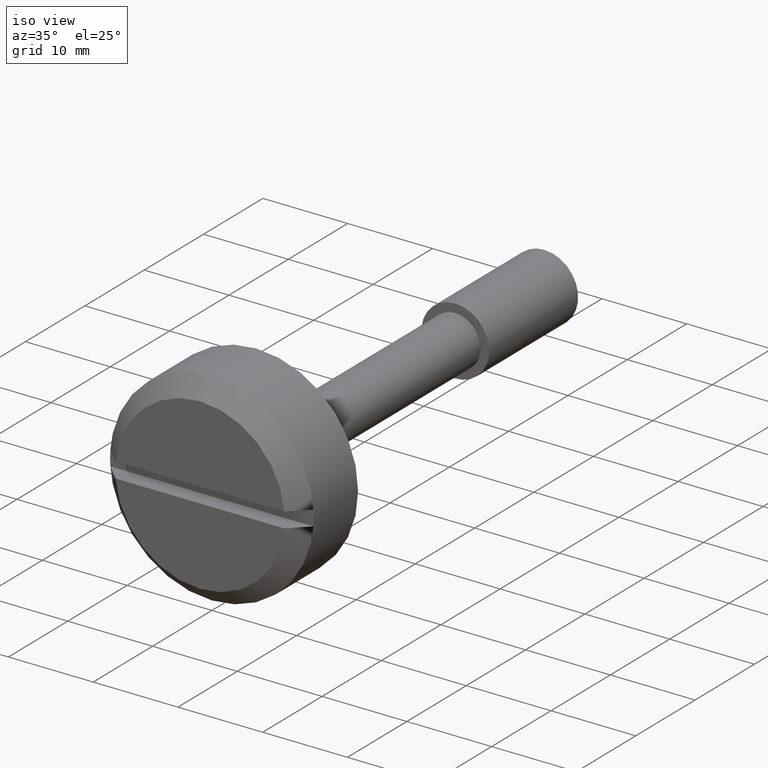
[diagram: clean part render]
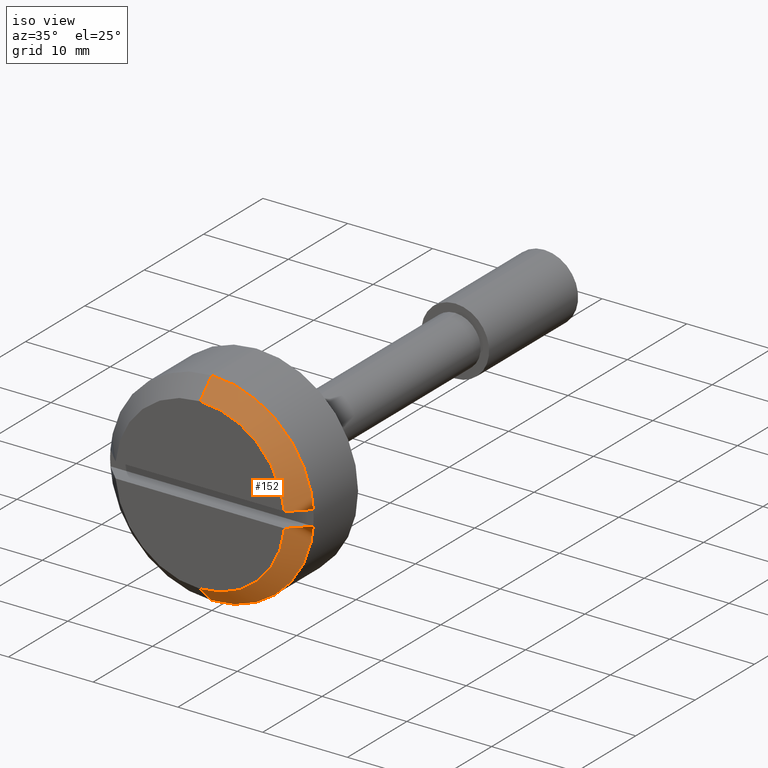
[diagram: same view with one face highlighted and labeled with its STEP entity id]
A machine part, iso view. The second image highlights one B-rep face of the part: STEP entity #152.
In plain terms, the highlighted face is a freeform B-spline surface patch.
Its self-contained STEP definition (entity closure, byte-faithful):
#152=ADVANCED_FACE('',(#560),#559,.T.);
#559=( BOUNDED_SURFACE() B_SPLINE_SURFACE( 2,1,((#808,#809),(#810,#811),(#812,#813),(#814,#815),(#816,#817)), .UNSPECIFIED.,.F.,.F.,.F.) B_SPLINE_SURFACE_WITH_KNOTS((3,2,3),(2,2),(0.00000000000E+00,5.00000000000E-01,1.00000000000E+00),(0.00000000000E+00,1.00000000000E+00), .UNSPECIFIED. ) GEOMETRIC_REPRESENTATION_ITEM() RATIONAL_B_SPLINE_SURFACE(((1.00000000000E+00,1.00000000000E+00),(7.07106781187E-01,7.07106781187E-01),(1.00000000000E+00,1.00000000000E+00),(7.07106781187E-01,7.07106781187E-01),(1.00000000000E+00,1.00000000000E+00))) REPRESENTATION_ITEM('') SURFACE() );
#560=FACE_OUTER_BOUND('',#818,.T.);
#808=CARTESIAN_POINT('',(-1.19999628376E+01,-2.44927820751E-15,9.99993716236E+00));
#809=CARTESIAN_POINT('',(-9.99990000000E+00,-2.93915231795E-15,1.20000000000E+01));
#810=CARTESIAN_POINT('',(-1.19999628376E+01,-9.99993716236E+00,9.99993716236E+00));
#811=CARTESIAN_POINT('',(-9.99990000000E+00,-1.20000000000E+01,1.20000000000E+01));
#812=CARTESIAN_POINT('',(-1.19999628376E+01,-9.99993716236E+00,-1.83695865563E-15));
#813=CARTESIAN_POINT('',(-9.99990000000E+00,-1.20000000000E+01,-2.20436423847E-15));
#814=CARTESIAN_POINT('',(-1.19999628376E+01,-9.99993716236E+00,-9.99993716236E+00));
#815=CARTESIAN_POINT('',(-9.99990000000E+00,-1.20000000000E+01,-1.20000000000E+01));
#816=CARTESIAN_POINT('',(-1.19999628376E+01,1.22463910376E-15,-9.99993716236E+00));
#817=CARTESIAN_POINT('',(-9.99990000000E+00,1.46957615898E-15,-1.20000000000E+01));
#818=EDGE_LOOP('',(#1014,#1015,#1016,#1017,#1018,#1019,#1020,#1021));
#1014=ORIENTED_EDGE('',*,*,#1115,.T.);
#1015=ORIENTED_EDGE('',*,*,#1128,.F.);
#1016=ORIENTED_EDGE('',*,*,#1092,.F.);
#1017=ORIENTED_EDGE('',*,*,#1100,.F.);
#1018=ORIENTED_EDGE('',*,*,#1104,.F.);
#1019=ORIENTED_EDGE('',*,*,#1107,.F.);
#1020=ORIENTED_EDGE('',*,*,#1109,.F.);
#1021=ORIENTED_EDGE('',*,*,#1129,.T.);
#1092=EDGE_CURVE('',#1546,#1547,#1548,.T.);
#1100=EDGE_CURVE('',#1596,#1546,#1603,.T.);
#1104=EDGE_CURVE('',#1622,#1596,#1629,.T.);
#1107=EDGE_CURVE('',#1642,#1622,#1649,.T.);
#1109=EDGE_CURVE('',#1655,#1642,#1662,.T.);
#1115=EDGE_CURVE('',#1669,#1668,#1702,.T.);
#1128=EDGE_CURVE('',#1547,#1668,#1783,.T.);
#1129=EDGE_CURVE('',#1655,#1669,#1789,.T.);
#1546=VERTEX_POINT('',#2051);
#1547=VERTEX_POINT('',#2052);
#1548=CIRCLE('',#2056,1.00000000000E+01);
#1596=VERTEX_POINT('',#2086);
#1603=(BOUNDED_CURVE() B_SPLINE_CURVE(3,(#2090,#2091,#2092,#2093),.UNSPECIFIED.,.F.,.F.) B_SPLINE_CURVE_WITH_KNOTS((4,4),(2.03654719955E-02,2.31985591046E-02),.UNSPECIFIED.) CURVE() GEOMETRIC_REPRESENTATION_ITEM() RATIONAL_B_SPLINE_CURVE((1.00000000000E+00,1.00000000000E+00,1.00000000000E+00,1.00000000000E+00)) REPRESENTATION_ITEM('') );
#1622=VERTEX_POINT('',#2103);
#1629=CIRCLE('',#2110,1.19999000000E+01);
#1642=VERTEX_POINT('',#2116);
#1649=(BOUNDED_CURVE() B_SPLINE_CURVE(3,(#2120,#2121,#2122,#2123),.UNSPECIFIED.,.F.,.F.) B_SPLINE_CURVE_WITH_KNOTS((4,4),(5.03592465112E-02,5.31959732792E-02),.UNSPECIFIED.) CURVE() GEOMETRIC_REPRESENTATION_ITEM() RATIONAL_B_SPLINE_CURVE((1.00000000000E+00,1.00000000000E+00,1.00000000000E+00,1.00000000000E+00)) REPRESENTATION_ITEM('') );
#1655=VERTEX_POINT('',#2124);
#1662=CIRCLE('',#2132,1.00000000000E+01);
#1668=VERTEX_POINT('',#2133);
#1669=VERTEX_POINT('',#2134);
#1702=CIRCLE('',#2156,1.20000000000E+01);
#1783=(BOUNDED_CURVE() B_SPLINE_CURVE(1,(#2188,#2189),.UNSPECIFIED.,.F.,.F.) B_SPLINE_CURVE_WITH_KNOTS((2,2),(3.14215829039E-05,1.00000000000E+00),.UNSPECIFIED.) CURVE() GEOMETRIC_REPRESENTATION_ITEM() RATIONAL_B_SPLINE_CURVE((1.00000000000E+00,1.00000000000E+00)) REPRESENTATION_ITEM('') );
#1789=(BOUNDED_CURVE() B_SPLINE_CURVE(1,(#2190,#2191),.UNSPECIFIED.,.F.,.F.) B_SPLINE_CURVE_WITH_KNOTS((2,2),(0.00000000000E+00,1.00000000000E+00),.UNSPECIFIED.) CURVE() GEOMETRIC_REPRESENTATION_ITEM() RATIONAL_B_SPLINE_CURVE((7.50000000000E-01,7.50000000000E-01)) REPRESENTATION_ITEM('') );
#2051=CARTESIAN_POINT('',(-1.19999000000E+01,-9.95941765366E+00,9.00000000000E-01));
#2052=CARTESIAN_POINT('',(-1.19999000000E+01,-1.60540127897E-06,1.00000000000E+01));
#2053=CARTESIAN_POINT('',(-1.19999000000E+01,0.00000000000E+00,0.00000000000E+00));
#2054=DIRECTION('',(-1.00000000000E+00,0.00000000000E+00,0.00000000000E+00));
#2055=DIRECTION('',(-0.00000000000E+00,-0.00000000000E+00,-1.00000000000E+00));
#2056=AXIS2_PLACEMENT_3D('',#2053,#2054,#2055);
#2086=CARTESIAN_POINT('',(-1.00000000000E+01,-1.19661021227E+01,9.00000000000E-01));
#2090=CARTESIAN_POINT('',(-1.00000000000E+01,-1.19661021227E+01,9.00000000000E-01));
#2091=CARTESIAN_POINT('',(-1.06668226893E+01,-1.12973960137E+01,9.00000000000E-01));
#2092=CARTESIAN_POINT('',(-1.13334940331E+01,-1.06285390723E+01,9.00000000000E-01));
#2093=CARTESIAN_POINT('',(-1.19999000000E+01,-9.95941765366E+00,9.00000000000E-01));
#2103=CARTESIAN_POINT('',(-1.00000000000E+01,-1.19661021227E+01,-9.00000000000E-01));
#2107=CARTESIAN_POINT('',(-1.00000000000E+01,0.00000000000E+00,0.00000000000E+00));
#2108=DIRECTION('',(-1.00000000000E+00,0.00000000000E+00,0.00000000000E+00));
#2109=DIRECTION('',(-0.00000000000E+00,-0.00000000000E+00,-1.00000000000E+00));
#2110=AXIS2_PLACEMENT_3D('',#2107,#2108,#2109);
#2116=CARTESIAN_POINT('',(-1.19999000000E+01,-9.95941765366E+00,-9.00000000000E-01));
#2120=CARTESIAN_POINT('',(-1.19999000000E+01,-9.95941765366E+00,-9.00000000000E-01));
#2121=CARTESIAN_POINT('',(-1.13334940831E+01,-1.06285390220E+01,-9.00000000000E-01));
#2122=CARTESIAN_POINT('',(-1.06668225228E+01,-1.12973961807E+01,-9.00000000000E-01));
#2123=CARTESIAN_POINT('',(-1.00000000000E+01,-1.19661021227E+01,-9.00000000000E-01));
#2124=CARTESIAN_POINT('',(-1.19999000000E+01,2.44249065418E-15,-1.00000000000E+01));
#2129=CARTESIAN_POINT('',(-1.19999000000E+01,0.00000000000E+00,0.00000000000E+00));
#2130=DIRECTION('',(-1.00000000000E+00,0.00000000000E+00,0.00000000000E+00));
#2131=DIRECTION('',(-0.00000000000E+00,9.95941765366E-01,-9.00000000000E-02));
#2132=AXIS2_PLACEMENT_3D('',#2129,#2130,#2131);
#2133=CARTESIAN_POINT('',(-9.99990000000E+00,0.00000000000E+00,1.20000000000E+01));
#2134=CARTESIAN_POINT('',(-9.99990000000E+00,-5.92118946467E-16,-1.20000000000E+01));
#2153=CARTESIAN_POINT('',(-9.99990000000E+00,0.00000000000E+00,0.00000000000E+00));
#2154=DIRECTION('',(-1.00000000000E+00,0.00000000000E+00,0.00000000000E+00));
#2155=DIRECTION('',(0.00000000000E+00,-1.22460635382E-16,1.00000000000E+00));
#2156=AXIS2_PLACEMENT_3D('',#2153,#2154,#2155);
#2188=CARTESIAN_POINT('',(-1.19999628376E+01,-2.44919731737E-15,9.99993716236E+00));
#2189=CARTESIAN_POINT('',(-9.99990000000E+00,-2.93905524917E-15,1.20000000000E+01));
#2190=CARTESIAN_POINT('',(-1.19999628376E+01,2.96059473233E-15,-9.99993716236E+00));
#2191=CARTESIAN_POINT('',(-9.99990000000E+00,4.14483262527E-15,-1.20000000000E+01));